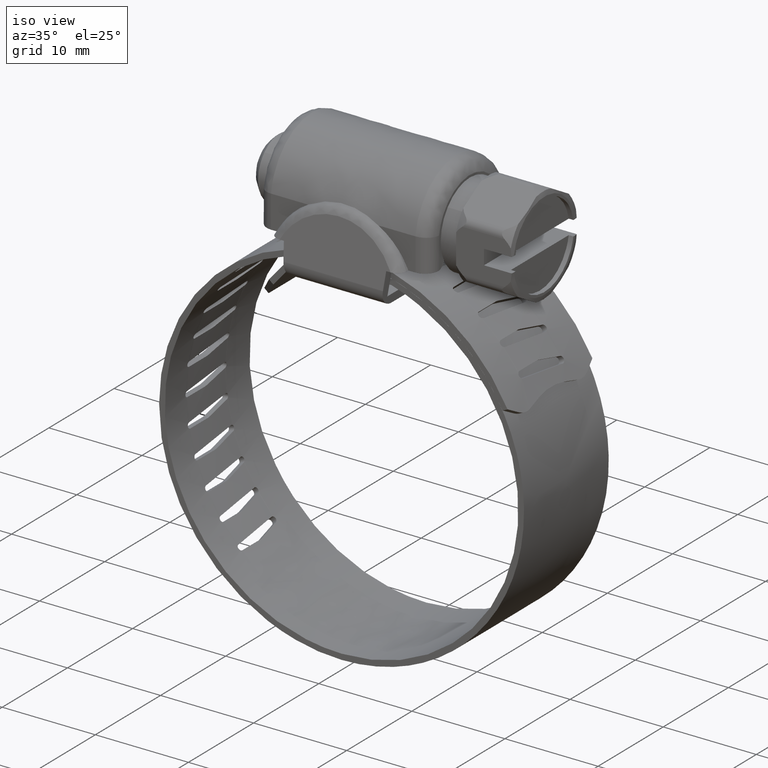
[diagram: clean part render]
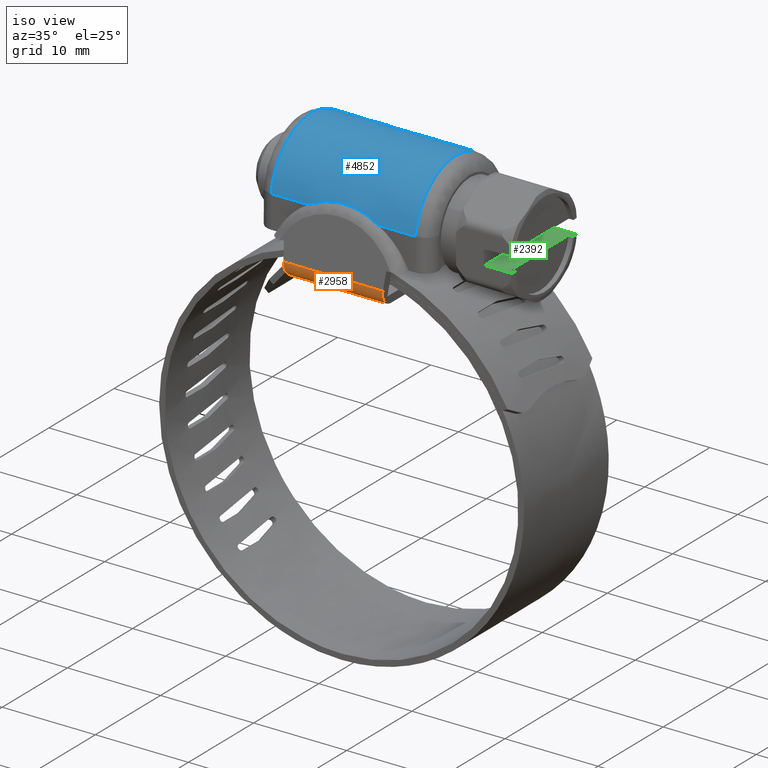
[diagram: same view with three faces highlighted in distinct colors, each labeled with its STEP entity id]
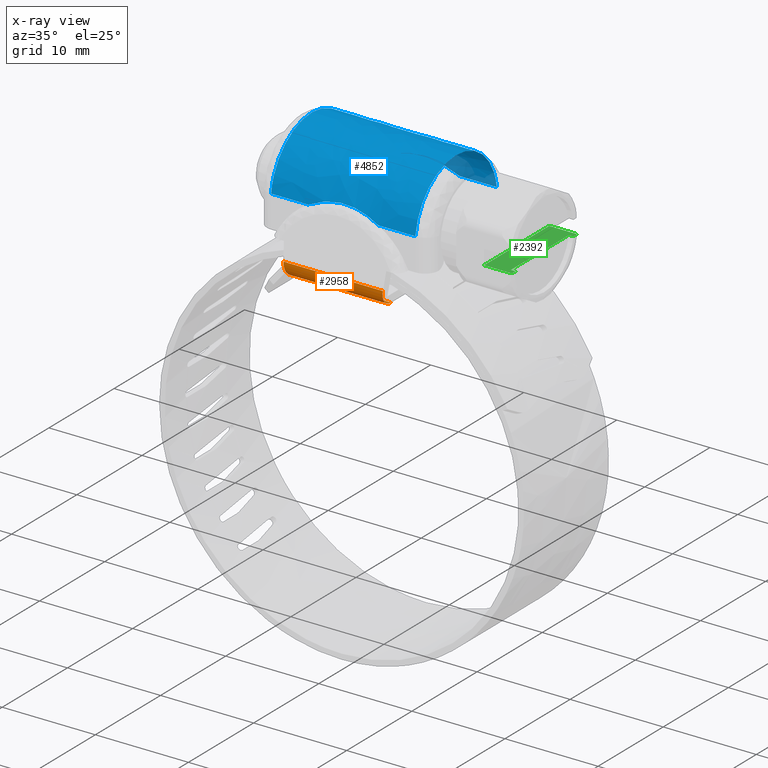
[diagram: x-ray of the same camera — body ghosted, the three highlighted faces saturated]
A machine part, iso view with three faces highlighted in distinct colors.
The next image is the same camera in x-ray (body ghosted, the three faces saturated) — at least one of them is partly hidden behind the body in this view.
Their STEP definitions:

[orange] entity #2958 — the highlighted face is a freeform B-spline surface patch.
#2897=CARTESIAN_POINT('',(5.610942842753775,-7.774915976656825,11.266618263851109));
#2898=CARTESIAN_POINT('',(-5.617622536614097,-7.774915976656825,11.266618263851109));
#2899=CARTESIAN_POINT('',(5.610942842753776,-8.145504214847581,9.382811435428380));
#2900=CARTESIAN_POINT('',(-5.617622536614097,-8.145504214847581,9.382811435428380));
#2901=CARTESIAN_POINT('',(5.610942842753775,-6.228001091029420,9.478965370579360));
#2902=CARTESIAN_POINT('',(-5.617622536614097,-6.228001091029420,9.478965370579360));
#2910=(BOUNDED_SURFACE()B_SPLINE_SURFACE(1,2,((#2897,#2899,#2901),(#2898,#2900,#2902)),.UNSPECIFIED.,.F.,.F.,.U.)B_SPLINE_SURFACE_WITH_KNOTS((2,2),(3,3),(0.0,11.228565379367870),(0.0,2.926395531395166),.UNSPECIFIED.)GEOMETRIC_REPRESENTATION_ITEM()RATIONAL_B_SPLINE_SURFACE(((1.0,0.615661475325659,1.0),(1.0,0.615661475325659,1.0)))REPRESENTATION_ITEM('')SURFACE());
#2911=CARTESIAN_POINT('',(-5.200000000000000,-6.303124778494929,9.477083000000221));
#2912=VERTEX_POINT('',#2911);
#2913=CARTESIAN_POINT('',(-5.343755088336830,-7.786144508388070,11.202144060042160));
#2914=VERTEX_POINT('',#2913);
#2915=CARTESIAN_POINT('',(-5.200000000000000,-6.303124778494929,9.477083000000221));
#2916=CARTESIAN_POINT('',(-5.200019983936213,-6.424384291141878,9.477322807234730));
#2917=CARTESIAN_POINT('',(-5.202378079645166,-6.653352283486400,9.505619955742141));
#2918=CARTESIAN_POINT('',(-5.211681618763182,-6.958682666888008,9.617262425158671));
#2919=CARTESIAN_POINT('',(-5.224674962100172,-7.211987754684610,9.773182545201939));
#2920=CARTESIAN_POINT('',(-5.240993240180391,-7.426567715479719,9.969001882164969));
#2921=CARTESIAN_POINT('',(-5.261824440967393,-7.611194066778620,10.218976291609140));
#2922=CARTESIAN_POINT('',(-5.282910515944241,-7.724394420518038,10.472009191330580));
#2923=CARTESIAN_POINT('',(-5.310644006820466,-7.807796686167642,10.804811081846189));
#2924=CARTESIAN_POINT('',(-5.329929658142284,-7.811730418399273,11.036238897707181));
#2925=CARTESIAN_POINT('',(-5.343755088336830,-7.786144508388070,11.202144060042160));
#2926=B_SPLINE_CURVE_WITH_KNOTS('',3,(#2915,#2916,#2917,#2918,#2919,#2920,#2921,#2922,#2923,#2924,#2925),.UNSPECIFIED.,.F.,.U.,(4,1,1,1,1,1,1,1,4),(0.000000082587170,0.363773686031982,0.687139916810593,0.970083961342865,1.253029681848450,1.556154787195379,1.899737180066727,2.081629865412805,2.586877134220472),.UNSPECIFIED.);
#2927=EDGE_CURVE('',#2912,#2914,#2926,.T.);
#2928=ORIENTED_EDGE('',*,*,#2927,.F.);
#2929=CARTESIAN_POINT('',(5.200000000000100,-6.303124778494929,9.477083000000221));
#2930=VERTEX_POINT('',#2929);
#2931=CARTESIAN_POINT('',(5.200000000000100,-6.303124778494929,9.477083000000221));
#2932=CARTESIAN_POINT('',(-5.200000000000000,-6.303124778494929,9.477083000000221));
#2933=QUASI_UNIFORM_CURVE('',1,(#2931,#2932),.UNSPECIFIED.,.F.,.U.);
#2934=EDGE_CURVE('',#2930,#2912,#2933,.T.);
#2935=ORIENTED_EDGE('',*,*,#2934,.F.);
#2936=CARTESIAN_POINT('',(5.343755088336931,-7.786144508388049,11.202144060042141));
#2937=VERTEX_POINT('',#2936);
#2938=CARTESIAN_POINT('',(5.343755088336931,-7.786144508388049,11.202144060042141));
#2939=CARTESIAN_POINT('',(5.327716711117197,-7.815960330891837,11.009683533405850));
#2940=CARTESIAN_POINT('',(5.302657156967984,-7.802643461844998,10.708968883615270));
#2941=CARTESIAN_POINT('',(5.271894216227930,-7.672106874773156,10.339813594735450));
#2942=CARTESIAN_POINT('',(5.249637489948519,-7.513785819362785,10.072732879382229));
#2943=CARTESIAN_POINT('',(5.228880835282802,-7.284682768659934,9.823653023394053));
#2944=CARTESIAN_POINT('',(5.212014970931546,-6.979261900429474,9.621262651178379));
#2945=CARTESIAN_POINT('',(5.202108786808137,-6.639927733958762,9.502388441697399));
#2946=CARTESIAN_POINT('',(5.200016789529603,-6.410916263254394,9.477284474354070));
#2947=CARTESIAN_POINT('',(5.200000000000100,-6.303124778494929,9.477083000000221));
#2948=B_SPLINE_CURVE_WITH_KNOTS('',3,(#2938,#2939,#2940,#2941,#2942,#2943,#2944,#2945,#2946,#2947),.UNSPECIFIED.,.F.,.U.,(4,1,1,1,1,1,1,4),(0.000000082682748,0.586129261765080,0.889310328808089,1.172280207689585,1.515843336338518,1.899871947899888,2.263682515431236,2.587060648422726),.UNSPECIFIED.);
#2949=EDGE_CURVE('',#2937,#2930,#2948,.T.);
#2950=ORIENTED_EDGE('',*,*,#2949,.F.);
#2951=CARTESIAN_POINT('',(-5.343755088336830,-7.786144508388070,11.202144060042160));
#2952=CARTESIAN_POINT('',(5.343755088336931,-7.786144508388049,11.202144060042141));
#2953=QUASI_UNIFORM_CURVE('',1,(#2951,#2952),.UNSPECIFIED.,.F.,.U.);
#2954=EDGE_CURVE('',#2914,#2937,#2953,.T.);
#2955=ORIENTED_EDGE('',*,*,#2954,.F.);
#2956=EDGE_LOOP('',(#2928,#2935,#2950,#2955));
#2957=FACE_OUTER_BOUND('',#2956,.T.);
#2958=ADVANCED_FACE('',(#2957),#2910,.T.);

[blue] entity #4852 — the highlighted face is a freeform B-spline surface patch.
#3122=CARTESIAN_POINT('',(-3.766983245140355,-6.249999633170980,16.577121365332999));
#3123=VERTEX_POINT('',#3122);
#3235=CARTESIAN_POINT('',(3.766983245140355,-6.249999633170980,16.577121365332999));
#3236=VERTEX_POINT('',#3235);
#3244=CARTESIAN_POINT('',(-3.766983245140355,-6.249999633170980,16.577121365332999));
#3245=CARTESIAN_POINT('',(-3.478831496909463,-6.229233364205876,16.739128154655241));
#3246=CARTESIAN_POINT('',(-3.183300914378316,-6.204570008767342,16.882148632117168));
#3247=CARTESIAN_POINT('',(-2.576808892005547,-6.155228093785371,17.130036402120751));
#3248=CARTESIAN_POINT('',(-2.265836634976381,-6.130547265610534,17.234876518080021));
#3249=CARTESIAN_POINT('',(-1.866693869858923,-6.103751019367197,17.340919599546389));
#3250=CARTESIAN_POINT('',(-1.786486061357972,-6.098601892761600,17.360832235081901));
#3251=CARTESIAN_POINT('',(-1.626024433981459,-6.088846631766009,17.397907521513719));
#3252=CARTESIAN_POINT('',(-1.545665445436081,-6.084233341677489,17.415098594033861));
#3253=CARTESIAN_POINT('',(-1.304205280765513,-6.071283367227001,17.462673344400940));
#3254=CARTESIAN_POINT('',(-1.142721123573348,-6.063841070201703,17.489062200122419));
#3255=CARTESIAN_POINT('',(-0.656740159557208,-6.045693866015511,17.552452619586020));
#3256=CARTESIAN_POINT('',(-0.330719706065374,-6.039235105378521,17.573749912531952));
#3257=CARTESIAN_POINT('',(0.161419786626403,-6.039184386857341,17.573920279852860));
#3258=CARTESIAN_POINT('',(0.325985564198005,-6.040757096750824,17.568663909435760));
#3259=CARTESIAN_POINT('',(0.573631993009526,-6.045493593546023,17.552599085312352));
#3260=CARTESIAN_POINT('',(0.656241352251390,-6.047467871330164,17.545878086249040));
#3261=CARTESIAN_POINT('',(0.820475667525163,-6.052146371881373,17.529813216404978));
#3262=CARTESIAN_POINT('',(0.902253417529042,-6.054853191231874,17.520460500731989));
#3263=CARTESIAN_POINT('',(1.309472620170547,-6.070102513587345,17.467179843144940));
#3264=CARTESIAN_POINT('',(1.629917328613110,-6.087864840067938,17.403768142886481));
#3265=CARTESIAN_POINT('',(2.260627271324118,-6.130187882777850,17.236317853900928));
#3266=CARTESIAN_POINT('',(2.570888658853245,-6.154751397064583,17.132263968381999));
#3267=CARTESIAN_POINT('',(3.028839962946760,-6.192001216301294,16.945374784512900));
#3268=CARTESIAN_POINT('',(3.179777303179230,-6.204428908061730,16.878107182095970));
#3269=CARTESIAN_POINT('',(3.476686108309584,-6.228226204638982,16.734530296358798));
#3270=CARTESIAN_POINT('',(3.622917516897374,-6.239617229855899,16.658119055673680));
#3271=CARTESIAN_POINT('',(3.766983245140355,-6.249999633170980,16.577121365332999));
#3272=B_SPLINE_CURVE_WITH_KNOTS('',3,(#3244,#3245,#3246,#3247,#3248,#3249,#3250,#3251,#3252,#3253,#3254,#3255,#3256,#3257,#3258,#3259,#3260,#3261,#3262,#3263,#3264,#3265,#3266,#3267,#3268,#3269,#3270,#3271),.UNSPECIFIED.,.F.,.U.,(4,2,2,2,2,2,2,2,2,2,2,2,2,4),(0.000000039906754,0.125000000000001,0.250000000000001,0.281250000000001,0.312500000000001,0.375000000000001,0.500000000000001,0.562500000000001,0.593750000000001,0.625000000000000,0.750000000000000,0.875000000000000,0.937500000000000,0.999999982435041),.UNSPECIFIED.);
#3273=EDGE_CURVE('',#3123,#3236,#3272,.T.);
#3465=CARTESIAN_POINT('',(-3.767731017053410,6.249999633170980,16.577121365332999));
#3466=VERTEX_POINT('',#3465);
#3474=CARTESIAN_POINT('',(3.767731017053410,6.249999633170980,16.577121365332999));
#3475=VERTEX_POINT('',#3474);
#3476=CARTESIAN_POINT('',(3.767731017053410,6.249999633170980,16.577121365332999));
#3477=CARTESIAN_POINT('',(3.479497733507518,6.229237709105721,16.739094258291651));
#3478=CARTESIAN_POINT('',(3.183884050679524,6.204583222070062,16.882071151559519));
#3479=CARTESIAN_POINT('',(2.577243934754033,6.155257050299552,17.129902017543969));
#3480=CARTESIAN_POINT('',(2.266206147951572,6.130582696073145,17.234727400421061));
#3481=CARTESIAN_POINT('',(1.866991587071622,6.103790234875439,17.340766625409820));
#3482=CARTESIAN_POINT('',(1.786771470837745,6.098641773924828,17.360678763914390));
#3483=CARTESIAN_POINT('',(1.626284023453253,6.088887352445290,17.397754646818960));
#3484=CARTESIAN_POINT('',(1.545912167912042,6.084274283725710,17.414946625872581));
#3485=CARTESIAN_POINT('',(1.304413467685331,6.071324521135703,17.462525250646319));
#3486=CARTESIAN_POINT('',(1.142903704963588,6.063881763437935,17.488918202284239));
#3487=CARTESIAN_POINT('',(0.656845720759579,6.045732683460419,17.552320710697689));
#3488=CARTESIAN_POINT('',(0.330773580215899,6.039272260056391,17.573625094178219));
#3489=CARTESIAN_POINT('',(-0.161444854682112,6.039221514861135,17.573795563976041));
#3490=CARTESIAN_POINT('',(-0.326037165918512,6.040794574774885,17.568537633646770));
#3491=CARTESIAN_POINT('',(-0.573723678317318,6.045531948734165,17.552468569044731));
#3492=CARTESIAN_POINT('',(-0.656346915220894,6.047506583847865,17.545745815254921));
#3493=CARTESIAN_POINT('',(-0.820608736505639,6.052185828560140,17.529677062264259));
#3494=CARTESIAN_POINT('',(-0.902400225254582,6.054893035526168,17.520322214310770));
#3495=CARTESIAN_POINT('',(-1.309688241338812,6.070144131077192,17.467030690373669));
#3496=CARTESIAN_POINT('',(-1.630188360697988,6.087907219618561,17.403609516303838));
#3497=CARTESIAN_POINT('',(-2.261015828429809,6.130224851233542,17.236162525183840));
#3498=CARTESIAN_POINT('',(-2.571339628588592,6.154781890041164,17.132122576332680));
#3499=CARTESIAN_POINT('',(-3.029391561703454,6.192018955972971,16.945279975485011));
#3500=CARTESIAN_POINT('',(-3.180366883374803,6.204442304778198,16.878030458831791));
#3501=CARTESIAN_POINT('',(-3.477353567144340,6.228231820699066,16.734492306269210));
#3502=CARTESIAN_POINT('',(-3.623625442391634,6.239619468304403,16.658101592606808));
#3503=CARTESIAN_POINT('',(-3.767731017053410,6.249999633170980,16.577121365332999));
#3504=B_SPLINE_CURVE_WITH_KNOTS('',3,(#3476,#3477,#3478,#3479,#3480,#3481,#3482,#3483,#3484,#3485,#3486,#3487,#3488,#3489,#3490,#3491,#3492,#3493,#3494,#3495,#3496,#3497,#3498,#3499,#3500,#3501,#3502,#3503),.UNSPECIFIED.,.F.,.U.,(4,2,2,2,2,2,2,2,2,2,2,2,2,4),(0.000000039879375,0.125000000000000,0.250000000000001,0.281250000000000,0.312500000000000,0.375000000000000,0.500000000000000,0.562500000000000,0.593749999999999,0.624999999999999,0.749999999999999,0.875000000000000,0.937500000000000,0.999999982445228),.UNSPECIFIED.);
#3505=EDGE_CURVE('',#3475,#3466,#3504,.T.);
#4021=CARTESIAN_POINT('',(7.750000000000000,6.249999633170980,16.577121365332999));
#4022=VERTEX_POINT('',#4021);
#4082=CARTESIAN_POINT('',(7.750000000000000,-6.249999633170980,16.577121365332999));
#4083=VERTEX_POINT('',#4082);
#4122=CARTESIAN_POINT('',(7.750000000000000,-6.249999633170980,16.577121365332999));
#4123=CARTESIAN_POINT('',(7.749999999999997,-6.192858612720015,17.023461606118349));
#4124=CARTESIAN_POINT('',(7.749999999999985,-6.004483344557809,17.811114419646330));
#4125=CARTESIAN_POINT('',(7.749999999999985,-5.493430391011549,18.936468224949792));
#4126=CARTESIAN_POINT('',(7.750000000000017,-4.768247736936166,19.968964268993279));
#4127=CARTESIAN_POINT('',(7.749999999999981,-3.821449998567659,20.840813496788360));
#4128=CARTESIAN_POINT('',(7.750000000000011,-2.822711603004785,21.441066222319339));
#4129=CARTESIAN_POINT('',(7.749999999999964,-1.873567416751671,21.817683481073111));
#4130=CARTESIAN_POINT('',(7.750000000000114,-0.970484627546377,22.024865529894949));
#4131=CARTESIAN_POINT('',(7.749999999999758,-0.118598262668776,22.092219739386120));
#4132=CARTESIAN_POINT('',(7.750000000000127,0.876686144835046,22.047374128931821));
#4133=CARTESIAN_POINT('',(7.749999999999922,1.854828169435320,21.834576604991621));
#4134=CARTESIAN_POINT('',(7.750000000000020,2.775155824762030,21.451125742594950));
#4135=CARTESIAN_POINT('',(7.749999999999975,3.599250184799025,20.980801842497261));
#4136=CARTESIAN_POINT('',(7.750000000000051,4.397419192187838,20.339879900728281));
#4137=CARTESIAN_POINT('',(7.749999999999849,5.154971753869275,19.455265926785579));
#4138=CARTESIAN_POINT('',(7.750000000000417,5.723301906161806,18.492868930644519));
#4139=CARTESIAN_POINT('',(7.749999999999248,6.085007222442521,17.511062609718511));
#4140=CARTESIAN_POINT('',(7.750000000000511,6.213870095098672,16.859009974104470));
#4141=CARTESIAN_POINT('',(7.750000000000000,6.249999633170980,16.577121365332999));
#4142=B_SPLINE_CURVE_WITH_KNOTS('',3,(#4122,#4123,#4124,#4125,#4126,#4127,#4128,#4129,#4130,#4131,#4132,#4133,#4134,#4135,#4136,#4137,#4138,#4139,#4140,#4141),.UNSPECIFIED.,.F.,.U.,(4,1,1,1,1,1,1,1,1,1,1,1,1,1,1,1,1,4),(0.000000060315070,1.349943600092228,2.415733632672504,3.694651313793646,5.115684285766504,6.252498486006285,7.176173375872324,8.170887220510865,9.023498748825192,9.733968781850164,11.155000248900420,12.007623203004069,12.718139274140910,13.997064377487231,15.062842146707750,16.199648783995212,17.336485980562490,18.189077700182469),.UNSPECIFIED.);
#4143=EDGE_CURVE('',#4083,#4022,#4142,.T.);
#4233=CARTESIAN_POINT('',(-7.749999999999810,6.249999633170980,16.577121365332999));
#4234=VERTEX_POINT('',#4233);
#4295=CARTESIAN_POINT('',(-7.750000000000000,-6.249999633170980,16.577121365332999));
#4296=VERTEX_POINT('',#4295);
#4310=CARTESIAN_POINT('',(-7.749999999999810,6.249999633170980,16.577121365332999));
#4311=CARTESIAN_POINT('',(-7.749999999999827,6.180895034268023,17.117454858475050));
#4312=CARTESIAN_POINT('',(-7.749999999999830,5.974131607614042,17.902682115580681));
#4313=CARTESIAN_POINT('',(-7.749999999999875,5.438683001456798,19.014383878839979));
#4314=CARTESIAN_POINT('',(-7.749999999999888,4.795605186262141,19.930000054166459));
#4315=CARTESIAN_POINT('',(-7.749999999999917,3.929112125822712,20.746073819428869));
#4316=CARTESIAN_POINT('',(-7.749999999999998,2.912353747802857,21.405084537027420));
#4317=CARTESIAN_POINT('',(-7.749999999999813,1.832411258652752,21.847808111413450));
#4318=CARTESIAN_POINT('',(-7.750000000000237,0.735201649732921,22.060657454048609));
#4319=CARTESIAN_POINT('',(-7.749999999999653,-0.356110771573506,22.097611853115168));
#4320=CARTESIAN_POINT('',(-7.750000000000259,-1.252434989282401,21.975613959467509));
#4321=CARTESIAN_POINT('',(-7.749999999999773,-2.117762071538618,21.724941961421589));
#4322=CARTESIAN_POINT('',(-7.750000000000362,-2.950495648941378,21.378175569901899));
#4323=CARTESIAN_POINT('',(-7.749999999999983,-3.755355986826943,20.869317225188290));
#4324=CARTESIAN_POINT('',(-7.749999999999933,-4.449824369229487,20.258087809548069));
#4325=CARTESIAN_POINT('',(-7.750000000000233,-5.099237186932101,19.533648363828281));
#4326=CARTESIAN_POINT('',(-7.749999999999913,-5.652716252020297,18.642894735948602));
#4327=CARTESIAN_POINT('',(-7.750000000000086,-6.064731279999841,17.580079508078040));
#4328=CARTESIAN_POINT('',(-7.749999999999941,-6.204861864757846,16.929492900829469));
#4329=CARTESIAN_POINT('',(-7.750000000000000,-6.249999633170980,16.577121365332999));
#4330=B_SPLINE_CURVE_WITH_KNOTS('',3,(#4310,#4311,#4312,#4313,#4314,#4315,#4316,#4317,#4318,#4319,#4320,#4321,#4322,#4323,#4324,#4325,#4326,#4327,#4328,#4329),.UNSPECIFIED.,.F.,.U.,(4,1,1,1,1,1,1,1,1,1,1,1,1,1,1,1,1,4),(0.000000060324709,1.634150326835297,2.415733632680720,3.694651313801073,4.973580748318256,5.968296072613043,7.318275577833710,8.455104963837941,9.307671604146060,10.586590919419450,11.155000248901780,12.007623203004730,13.286550058136131,13.997064377487041,14.778636245437729,16.199648783994910,17.123325108162341,18.189077700182459),.UNSPECIFIED.);
#4331=EDGE_CURVE('',#4234,#4296,#4330,.T.);
#4783=CARTESIAN_POINT('',(7.750000000000000,-6.249999633170980,16.577121365332999));
#4784=CARTESIAN_POINT('',(3.766983245140355,-6.249999633170980,16.577121365332999));
#4785=QUASI_UNIFORM_CURVE('',1,(#4783,#4784),.UNSPECIFIED.,.F.,.U.);
#4786=EDGE_CURVE('',#4083,#3236,#4785,.T.);
#4806=CARTESIAN_POINT('',(-3.766983245140355,-6.249999633170980,16.577121365332999));
#4807=CARTESIAN_POINT('',(-7.750000000000000,-6.249999633170980,16.577121365332999));
#4808=QUASI_UNIFORM_CURVE('',1,(#4806,#4807),.UNSPECIFIED.,.F.,.U.);
#4809=EDGE_CURVE('',#3123,#4296,#4808,.T.);
#4816=CARTESIAN_POINT('',(8.137500000000001,6.256752797267127,16.522550016851341));
#4817=CARTESIAN_POINT('',(-8.147187500000037,6.256752797267127,16.522550016851341));
#4818=CARTESIAN_POINT('',(8.137500000000001,5.578620881440008,22.205784116358405));
#4819=CARTESIAN_POINT('',(-8.147187500000037,5.578620881440008,22.205784116358405));
#4820=CARTESIAN_POINT('',(8.137500000000001,-0.143444799420466,22.075488034368480));
#4821=CARTESIAN_POINT('',(-8.147187500000037,-0.143444799420466,22.075488034368480));
#4822=CARTESIAN_POINT('',(8.137500000000001,-5.865510480280938,21.945191952378561));
#4823=CARTESIAN_POINT('',(-8.147187500000037,-5.865510480280938,21.945191952378561));
#4824=CARTESIAN_POINT('',(8.137500000000001,-6.284249946758260,16.236981200813990));
#4825=CARTESIAN_POINT('',(-8.147187500000037,-6.284249946758260,16.236981200813990));
#4833=(BOUNDED_SURFACE()B_SPLINE_SURFACE(1,2,((#4816,#4818,#4820,#4822,#4824),(#4817,#4819,#4821,#4823,#4825)),.UNSPECIFIED.,.F.,.F.,.U.)B_SPLINE_SURFACE_WITH_KNOTS((2,2),(3,2,3),(0.0,16.284687500000040),(0.0,9.738261264178698,19.476522528357400),.UNSPECIFIED.)GEOMETRIC_REPRESENTATION_ITEM()RATIONAL_B_SPLINE_SURFACE(((1.0,0.740218127486832,1.0,0.740218127486832,1.0),(1.0,0.740218127486832,1.0,0.740218127486832,1.0)))REPRESENTATION_ITEM('')SURFACE());
#4834=CARTESIAN_POINT('',(7.750000000000000,6.249999633170980,16.577121365332999));
#4835=CARTESIAN_POINT('',(3.767731017053410,6.249999633170980,16.577121365332999));
#4836=QUASI_UNIFORM_CURVE('',1,(#4834,#4835),.UNSPECIFIED.,.F.,.U.);
#4837=EDGE_CURVE('',#4022,#3475,#4836,.T.);
#4838=ORIENTED_EDGE('',*,*,#4837,.T.);
#4839=ORIENTED_EDGE('',*,*,#3505,.T.);
#4840=CARTESIAN_POINT('',(-3.767731017053410,6.249999633170980,16.577121365332999));
#4841=CARTESIAN_POINT('',(-7.749999999999810,6.249999633170980,16.577121365332999));
#4842=QUASI_UNIFORM_CURVE('',1,(#4840,#4841),.UNSPECIFIED.,.F.,.U.);
#4843=EDGE_CURVE('',#3466,#4234,#4842,.T.);
#4844=ORIENTED_EDGE('',*,*,#4843,.T.);
#4845=ORIENTED_EDGE('',*,*,#4331,.T.);
#4846=ORIENTED_EDGE('',*,*,#4809,.F.);
#4847=ORIENTED_EDGE('',*,*,#3273,.T.);
#4848=ORIENTED_EDGE('',*,*,#4786,.F.);
#4849=ORIENTED_EDGE('',*,*,#4143,.T.);
#4850=EDGE_LOOP('',(#4838,#4839,#4844,#4845,#4846,#4847,#4848,#4849));
#4851=FACE_OUTER_BOUND('',#4850,.T.);
#4852=ADVANCED_FACE('',(#4851),#4833,.T.);

[green] entity #2392 — the highlighted face is a freeform B-spline surface patch.
#2053=CARTESIAN_POINT('',(17.206999503102100,5.0,15.027121000000200));
#2054=VERTEX_POINT('',#2053);
#2062=CARTESIAN_POINT('',(17.250000000000000,4.705992249096360,15.027121000000200));
#2063=VERTEX_POINT('',#2062);
#2064=CARTESIAN_POINT('',(17.206999503102100,5.0,15.027121000000200));
#2065=CARTESIAN_POINT('',(17.235500338065989,4.904776198005840,15.027121000000220));
#2066=CARTESIAN_POINT('',(17.250045317584561,4.805391457599020,15.027121000000170));
#2067=CARTESIAN_POINT('',(17.250000000000000,4.705992249096360,15.027121000000200));
#2068=B_SPLINE_CURVE_WITH_KNOTS('',3,(#2064,#2065,#2066,#2067),.UNSPECIFIED.,.F.,.U.,(4,4),(3.138838E-009,0.298189102501170),.UNSPECIFIED.);
#2069=EDGE_CURVE('',#2054,#2063,#2068,.T.);
#2071=CARTESIAN_POINT('',(17.250000000000000,-4.705992249096360,15.027121000000200));
#2072=VERTEX_POINT('',#2071);
#2095=CARTESIAN_POINT('',(17.206999503105251,-4.999999999989731,15.027121000000200));
#2096=VERTEX_POINT('',#2095);
#2097=CARTESIAN_POINT('',(17.250000000000000,-4.705992249096360,15.027121000000200));
#2098=CARTESIAN_POINT('',(17.250050022696779,-4.805390460604068,15.027121000000211));
#2099=CARTESIAN_POINT('',(17.235520243248740,-4.904780301418025,15.027121000000140));
#2100=CARTESIAN_POINT('',(17.206999503105251,-4.999999999989731,15.027121000000200));
#2101=B_SPLINE_CURVE_WITH_KNOTS('',3,(#2097,#2098,#2099,#2100),.UNSPECIFIED.,.F.,.U.,(4,4),(3.149692E-009,0.298190934497137),.UNSPECIFIED.);
#2102=EDGE_CURVE('',#2072,#2096,#2101,.T.);
#2273=CARTESIAN_POINT('',(16.750000000000000,-4.428317965096929,15.027121000000200));
#2274=VERTEX_POINT('',#2273);
#2275=CARTESIAN_POINT('',(17.250000000000000,-4.428317965096929,15.027121000000200));
#2276=VERTEX_POINT('',#2275);
#2277=CARTESIAN_POINT('',(16.750000000000000,-4.428317965096929,15.027121000000200));
#2278=CARTESIAN_POINT('',(17.250000000000000,-4.428317965096929,15.027121000000200));
#2279=QUASI_UNIFORM_CURVE('',1,(#2277,#2278),.UNSPECIFIED.,.F.,.U.);
#2280=EDGE_CURVE('',#2274,#2276,#2279,.T.);
#2282=CARTESIAN_POINT('',(17.250000000000000,4.428317965096929,15.027121000000200));
#2283=VERTEX_POINT('',#2282);
#2306=CARTESIAN_POINT('',(16.750000000000000,4.428317965096929,15.027121000000200));
#2307=VERTEX_POINT('',#2306);
#2308=CARTESIAN_POINT('',(17.250000000000000,4.428317965096929,15.027121000000200));
#2309=CARTESIAN_POINT('',(16.750000000000000,4.428317965096929,15.027121000000200));
#2310=QUASI_UNIFORM_CURVE('',1,(#2308,#2309),.UNSPECIFIED.,.F.,.U.);
#2311=EDGE_CURVE('',#2283,#2307,#2310,.T.);
#2343=CARTESIAN_POINT('',(16.750000000000000,-4.428317965096929,15.027121000000200));
#2344=CARTESIAN_POINT('',(16.750000000000000,4.428317965096929,15.027121000000200));
#2345=QUASI_UNIFORM_CURVE('',1,(#2343,#2344),.UNSPECIFIED.,.F.,.U.);
#2346=EDGE_CURVE('',#2274,#2307,#2345,.T.);
#2351=CARTESIAN_POINT('',(14.100150005814580,-5.499499980618060,15.027121000000200));
#2352=CARTESIAN_POINT('',(17.399850074651692,-5.499499980618060,15.027121000000200));
#2353=CARTESIAN_POINT('',(14.100150005814580,5.499500248838961,15.027121000000200));
#2354=CARTESIAN_POINT('',(17.399850074651692,5.499500248838961,15.027121000000200));
#2355=B_SPLINE_SURFACE_WITH_KNOTS('',1,1,((#2351,#2353),(#2352,#2354)),.UNSPECIFIED.,.F.,.F.,.U.,(2,2),(2,2),(0.0,3.299700068837110),(0.0,10.999000229457019),.UNSPECIFIED.);
#2356=ORIENTED_EDGE('',*,*,#2102,.F.);
#2357=CARTESIAN_POINT('',(17.250000000000000,-4.428317965096929,15.027121000000200));
#2358=CARTESIAN_POINT('',(17.250000000000000,-4.705992249096360,15.027121000000200));
#2359=QUASI_UNIFORM_CURVE('',1,(#2357,#2358),.UNSPECIFIED.,.F.,.U.);
#2360=EDGE_CURVE('',#2276,#2072,#2359,.T.);
#2361=ORIENTED_EDGE('',*,*,#2360,.F.);
#2362=ORIENTED_EDGE('',*,*,#2280,.F.);
#2363=ORIENTED_EDGE('',*,*,#2346,.T.);
#2364=ORIENTED_EDGE('',*,*,#2311,.F.);
#2365=CARTESIAN_POINT('',(17.250000000000000,4.705992249096360,15.027121000000200));
#2366=CARTESIAN_POINT('',(17.250000000000000,4.428317965096929,15.027121000000200));
#2367=QUASI_UNIFORM_CURVE('',1,(#2365,#2366),.UNSPECIFIED.,.F.,.U.);
#2368=EDGE_CURVE('',#2063,#2283,#2367,.T.);
#2369=ORIENTED_EDGE('',*,*,#2368,.F.);
#2370=ORIENTED_EDGE('',*,*,#2069,.F.);
#2371=CARTESIAN_POINT('',(14.250000000000000,5.0,15.027121000000200));
#2372=VERTEX_POINT('',#2371);
#2373=CARTESIAN_POINT('',(14.250000000000000,5.0,15.027121000000200));
#2374=CARTESIAN_POINT('',(17.206999503102100,5.0,15.027121000000200));
#2375=QUASI_UNIFORM_CURVE('',1,(#2373,#2374),.UNSPECIFIED.,.F.,.U.);
#2376=EDGE_CURVE('',#2372,#2054,#2375,.T.);
#2377=ORIENTED_EDGE('',*,*,#2376,.F.);
#2378=CARTESIAN_POINT('',(14.250000000000000,-5.0,15.027121000000200));
#2379=VERTEX_POINT('',#2378);
#2380=CARTESIAN_POINT('',(14.250000000000000,5.0,15.027121000000200));
#2381=CARTESIAN_POINT('',(14.250000000000000,-5.0,15.027121000000200));
#2382=QUASI_UNIFORM_CURVE('',1,(#2380,#2381),.UNSPECIFIED.,.F.,.U.);
#2383=EDGE_CURVE('',#2372,#2379,#2382,.T.);
#2384=ORIENTED_EDGE('',*,*,#2383,.T.);
#2385=CARTESIAN_POINT('',(14.250000000000000,-5.0,15.027121000000200));
#2386=CARTESIAN_POINT('',(17.206999503105251,-4.999999999989731,15.027121000000200));
#2387=QUASI_UNIFORM_CURVE('',1,(#2385,#2386),.UNSPECIFIED.,.F.,.U.);
#2388=EDGE_CURVE('',#2379,#2096,#2387,.T.);
#2389=ORIENTED_EDGE('',*,*,#2388,.T.);
#2390=EDGE_LOOP('',(#2356,#2361,#2362,#2363,#2364,#2369,#2370,#2377,#2384,#2389));
#2391=FACE_OUTER_BOUND('',#2390,.T.);
#2392=ADVANCED_FACE('',(#2391),#2355,.T.);